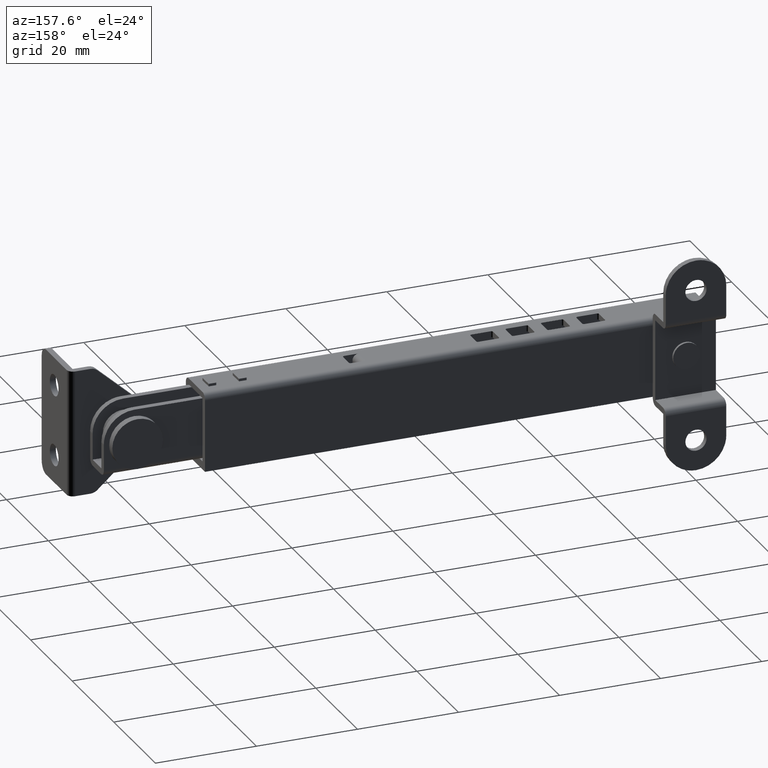
[diagram: clean part render]
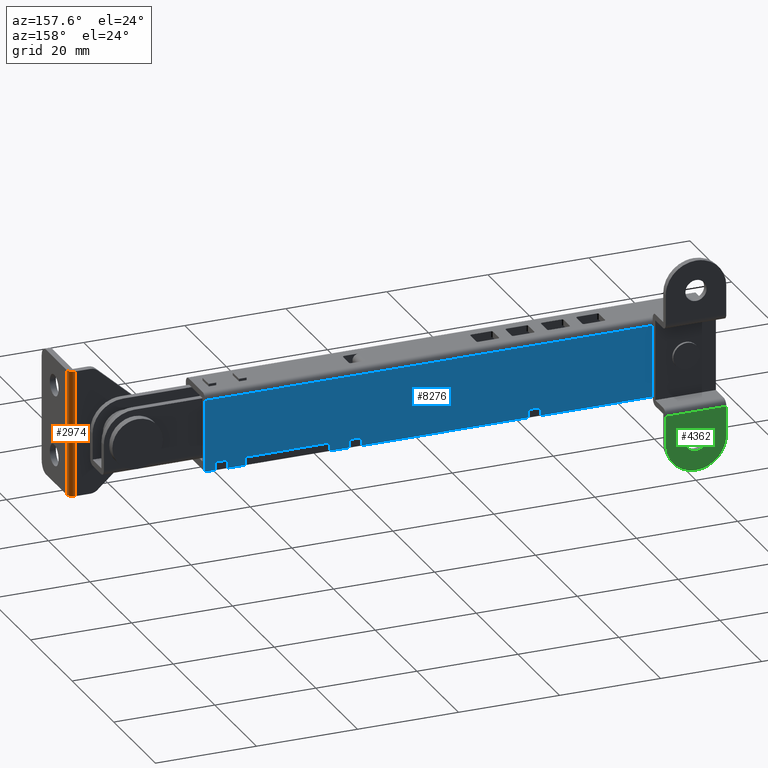
[diagram: same view with three faces highlighted in distinct colors, each labeled with its STEP entity id]
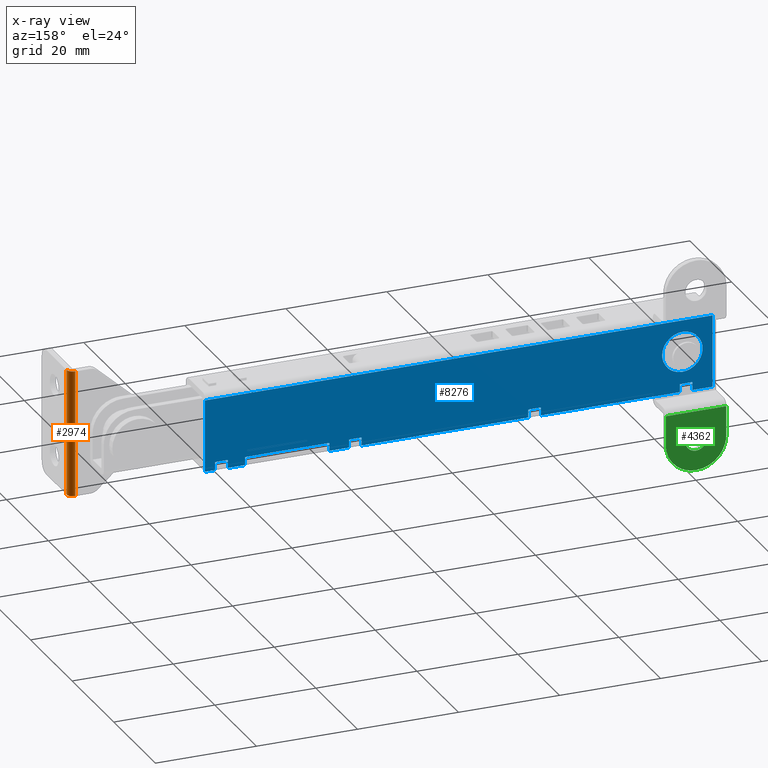
[diagram: x-ray of the same camera — body ghosted, the three highlighted faces saturated]
A machine part, auxiliary view with three faces highlighted in distinct colors.
The next image is the same camera in x-ray (body ghosted, the three faces saturated) — at least one of them is partly hidden behind the body in this view.
Their STEP definitions:

[orange] entity #2974 — the highlighted face is a freeform B-spline surface patch.
#2885=CARTESIAN_POINT('',(117.999999999938200,-16.000000000187899,12.500000000000300));
#2886=VERTEX_POINT('',#2885);
#2895=CARTESIAN_POINT('',(117.999999999938200,-16.000000000187899,-12.500000000000000));
#2896=VERTEX_POINT('',#2895);
#2902=CARTESIAN_POINT('',(117.999999999938200,-16.000000000187899,-12.500000000000000));
#2903=CARTESIAN_POINT('',(117.999999999938200,-16.000000000187899,12.500000000000300));
#2904=QUASI_UNIFORM_CURVE('',1,(#2902,#2903),.UNSPECIFIED.,.F.,.U.);
#2905=EDGE_CURVE('',#2896,#2886,#2904,.T.);
#2926=CARTESIAN_POINT('',(116.768587661968790,-14.800411210217231,-13.125000000000011));
#2927=CARTESIAN_POINT('',(116.768587661968790,-14.800411210217231,13.140625000000311));
#2928=CARTESIAN_POINT('',(118.077709106251130,-14.766130658752697,-13.125000000000009));
#2929=CARTESIAN_POINT('',(118.077709106251130,-14.766130658752697,13.140625000000307));
#2930=CARTESIAN_POINT('',(117.997761758044500,-16.073258247629699,-13.125000000000011));
#2931=CARTESIAN_POINT('',(117.997761758044500,-16.073258247629699,13.140625000000311));
#2939=(BOUNDED_SURFACE()B_SPLINE_SURFACE(1,2,((#2926,#2928,#2930),(#2927,#2929,#2931)),.UNSPECIFIED.,.F.,.F.,.U.)B_SPLINE_SURFACE_WITH_KNOTS((2,2),(3,3),(0.0,26.265625000000320),(0.0,2.112050548280775),.UNSPECIFIED.)GEOMETRIC_REPRESENTATION_ITEM()RATIONAL_B_SPLINE_SURFACE(((1.0,0.675590207615660,1.0),(1.0,0.675590207615660,1.0)))REPRESENTATION_ITEM('')SURFACE());
#2940=CARTESIAN_POINT('',(116.799999999938190,-14.800000000187920,12.500000000000300));
#2941=VERTEX_POINT('',#2940);
#2942=CARTESIAN_POINT('',(117.999999999938200,-16.000000000187899,12.500000000000300));
#2943=CARTESIAN_POINT('',(118.000154995630200,-15.842902735434761,12.500000000000311));
#2944=CARTESIAN_POINT('',(117.945240369215990,-15.568111018495561,12.500000000000290));
#2945=CARTESIAN_POINT('',(117.761513783139410,-15.261711034005360,12.500000000000320));
#2946=CARTESIAN_POINT('',(117.538289409100600,-15.038479472090691,12.500000000000250));
#2947=CARTESIAN_POINT('',(117.231880546618000,-14.854783521911740,12.500000000000410));
#2948=CARTESIAN_POINT('',(116.957103409524510,-14.799826109935781,12.500000000000160));
#2949=CARTESIAN_POINT('',(116.799999999938190,-14.800000000187920,12.500000000000300));
#2950=B_SPLINE_CURVE_WITH_KNOTS('',3,(#2942,#2943,#2944,#2945,#2946,#2947,#2948,#2949),.UNSPECIFIED.,.F.,.U.,(4,1,1,1,1,4),(0.000000336001188,0.471250975316817,0.824722723432618,1.060280505831677,1.413752253948257,1.885002893266316),.UNSPECIFIED.);
#2951=EDGE_CURVE('',#2886,#2941,#2950,.T.);
#2952=ORIENTED_EDGE('',*,*,#2951,.F.);
#2953=ORIENTED_EDGE('',*,*,#2905,.F.);
#2954=CARTESIAN_POINT('',(116.799999999938190,-14.800000000187920,-12.500000000000000));
#2955=VERTEX_POINT('',#2954);
#2956=CARTESIAN_POINT('',(117.999999999938200,-16.000000000187899,-12.500000000000000));
#2957=CARTESIAN_POINT('',(118.000154995630200,-15.842902735434770,-12.500000000000011));
#2958=CARTESIAN_POINT('',(117.945240369215990,-15.568111018495550,-12.500000000000000));
#2959=CARTESIAN_POINT('',(117.761513783139410,-15.261711034005360,-12.500000000000011));
#2960=CARTESIAN_POINT('',(117.538289409100600,-15.038479472090691,-12.499999999999959));
#2961=CARTESIAN_POINT('',(117.231880546618000,-14.854783521911740,-12.500000000000110));
#2962=CARTESIAN_POINT('',(116.957103409524610,-14.799826109935781,-12.499999999999870));
#2963=CARTESIAN_POINT('',(116.799999999938190,-14.800000000187920,-12.500000000000000));
#2964=B_SPLINE_CURVE_WITH_KNOTS('',3,(#2956,#2957,#2958,#2959,#2960,#2961,#2962,#2963),.UNSPECIFIED.,.F.,.U.,(4,1,1,1,1,4),(0.000000336001188,0.471250975316817,0.824722723432618,1.060280505831677,1.413752253948257,1.885002893266316),.UNSPECIFIED.);
#2965=EDGE_CURVE('',#2896,#2955,#2964,.T.);
#2966=ORIENTED_EDGE('',*,*,#2965,.T.);
#2967=CARTESIAN_POINT('',(116.799999999938190,-14.800000000187920,-12.500000000000000));
#2968=CARTESIAN_POINT('',(116.799999999938190,-14.800000000187920,12.500000000000300));
#2969=QUASI_UNIFORM_CURVE('',1,(#2967,#2968),.UNSPECIFIED.,.F.,.U.);
#2970=EDGE_CURVE('',#2955,#2941,#2969,.T.);
#2971=ORIENTED_EDGE('',*,*,#2970,.T.);
#2972=EDGE_LOOP('',(#2952,#2953,#2966,#2971));
#2973=FACE_OUTER_BOUND('',#2972,.T.);
#2974=ADVANCED_FACE('',(#2973),#2939,.T.);

[blue] entity #8276 — the highlighted face is a freeform B-spline surface patch.
#6666=CARTESIAN_POINT('',(2.803636808135322,-6.549999999997971,-2.853001444032441));
#6667=VERTEX_POINT('',#6666);
#6673=CARTESIAN_POINT('',(-1.136868E-013,-6.549999999997970,-3.999999999752543));
#6674=VERTEX_POINT('',#6673);
#6675=CARTESIAN_POINT('',(-1.136868E-013,-6.549999999997970,-3.999999999752543));
#6676=CARTESIAN_POINT('',(0.453115518183807,-6.549999999997975,-4.000333541699531));
#6677=CARTESIAN_POINT('',(1.100106939396764,-6.549999999997972,-3.888810040895856));
#6678=CARTESIAN_POINT('',(2.051287391097146,-6.549999999997969,-3.472386649104542));
#6679=CARTESIAN_POINT('',(2.526769850029818,-6.549999999997929,-3.125344002847344));
#6680=CARTESIAN_POINT('',(2.803636808135322,-6.549999999997971,-2.853001444032441));
#6681=B_SPLINE_CURVE_WITH_KNOTS('',3,(#6675,#6676,#6677,#6678,#6679,#6680),.UNSPECIFIED.,.F.,.U.,(4,1,1,4),(0.000000043175924,1.359184179807734,1.941690125895560,3.106705034853156),.UNSPECIFIED.);
#6682=EDGE_CURVE('',#6674,#6667,#6681,.T.);
#6684=CARTESIAN_POINT('',(-3.999999999875321,-6.549999999997970,-0.000001703496065));
#6685=VERTEX_POINT('',#6684);
#6686=CARTESIAN_POINT('',(-3.999999999875321,-6.549999999997970,-0.000001703496065));
#6687=CARTESIAN_POINT('',(-4.000010483380237,-6.549999999997959,-0.229067310976639));
#6688=CARTESIAN_POINT('',(-3.953521280009662,-6.549999999997986,-0.769029744471790));
#6689=CARTESIAN_POINT('',(-3.691281228358016,-6.549999999997956,-1.653543301743337));
#6690=CARTESIAN_POINT('',(-3.193424324865432,-6.549999999997969,-2.472597531045174));
#6691=CARTESIAN_POINT('',(-2.519065635633330,-6.549999999997967,-3.146873322060284));
#6692=CARTESIAN_POINT('',(-1.798169447499523,-6.549999999998007,-3.609625829967502));
#6693=CARTESIAN_POINT('',(-0.932617525786519,-6.549999999997965,-3.925279013536281));
#6694=CARTESIAN_POINT('',(-0.327251037855111,-6.549999999997969,-4.000083561234430));
#6695=CARTESIAN_POINT('',(-1.136868E-013,-6.549999999997970,-3.999999999752543));
#6696=B_SPLINE_CURVE_WITH_KNOTS('',3,(#6686,#6687,#6688,#6689,#6690,#6691,#6692,#6693,#6694,#6695),.UNSPECIFIED.,.F.,.U.,(4,1,1,1,1,1,1,4),(0.000000170140719,0.687206694942045,1.619894116931054,2.748937519952649,3.534287596504266,4.466977563691089,5.301490141978567,6.283223771128419),.UNSPECIFIED.);
#6697=EDGE_CURVE('',#6685,#6674,#6696,.T.);
#6699=CARTESIAN_POINT('',(-2.803636808135559,-6.549999999997970,2.853001444278505));
#6700=VERTEX_POINT('',#6699);
#6701=CARTESIAN_POINT('',(-2.803636808135559,-6.549999999997970,2.853001444278505));
#6702=CARTESIAN_POINT('',(-3.110683082841775,-6.549999999997987,2.551672406538114));
#6703=CARTESIAN_POINT('',(-3.486911729783811,-6.549999999997932,2.037877678478846));
#6704=CARTESIAN_POINT('',(-3.897584045025325,-6.549999999998015,1.058694737867666));
#6705=CARTESIAN_POINT('',(-4.000246734383261,-6.549999999997934,0.430191966249944));
#6706=CARTESIAN_POINT('',(-3.999999999875321,-6.549999999997970,-0.000001703496065));
#6707=B_SPLINE_CURVE_WITH_KNOTS('',3,(#6701,#6702,#6703,#6704,#6705,#6706),.UNSPECIFIED.,.F.,.U.,(4,1,1,4),(0.000000042817200,1.290472108983917,1.886049013989453,3.176521080209751),.UNSPECIFIED.);
#6708=EDGE_CURVE('',#6700,#6685,#6707,.T.);
#6742=CARTESIAN_POINT('',(-1.136868E-013,-6.549999999997970,3.999999999998598));
#6743=VERTEX_POINT('',#6742);
#6744=CARTESIAN_POINT('',(-1.136868E-013,-6.549999999997970,3.999999999998598));
#6745=CARTESIAN_POINT('',(-0.323618149225035,-6.549999999997979,4.000070243471589));
#6746=CARTESIAN_POINT('',(-0.970817980438166,-6.549999999997940,3.921058938376729));
#6747=CARTESIAN_POINT('',(-1.945657615557417,-6.549999999998048,3.549594462408471));
#6748=CARTESIAN_POINT('',(-2.526759966529120,-6.549999999997898,3.125325329273787));
#6749=CARTESIAN_POINT('',(-2.803636808135559,-6.549999999997970,2.853001444278505));
#6750=B_SPLINE_CURVE_WITH_KNOTS('',3,(#6744,#6745,#6746,#6747,#6748,#6749),.UNSPECIFIED.,.F.,.U.,(4,1,1,4),(0.000000043175572,0.970845521849461,1.941690125895452,3.106705034853161),.UNSPECIFIED.);
#6751=EDGE_CURVE('',#6743,#6700,#6750,.T.);
#6753=CARTESIAN_POINT('',(3.999999999875094,-6.549999999997971,0.000001703742170));
#6754=VERTEX_POINT('',#6753);
#6755=CARTESIAN_POINT('',(3.999999999875094,-6.549999999997971,0.000001703742170));
#6756=CARTESIAN_POINT('',(4.000520263814729,-6.549999999998001,0.507325280542887));
#6757=CARTESIAN_POINT('',(3.842177018184501,-6.549999999997900,1.325049770656315));
#6758=CARTESIAN_POINT('',(3.331504878198762,-6.549999999998073,2.266252528294428));
#6759=CARTESIAN_POINT('',(2.734772589380527,-6.549999999997810,2.966738769782755));
#6760=CARTESIAN_POINT('',(2.058446762006394,-6.549999999998114,3.468394326254157));
#6761=CARTESIAN_POINT('',(1.112456267428418,-6.549999999997881,3.887653051119977));
#6762=CARTESIAN_POINT('',(0.441836620000334,-6.549999999998015,4.000268283823984));
#6763=CARTESIAN_POINT('',(-1.136868E-013,-6.549999999997970,3.999999999998598));
#6764=B_SPLINE_CURVE_WITH_KNOTS('',3,(#6755,#6756,#6757,#6758,#6759,#6760,#6761,#6762,#6763),.UNSPECIFIED.,.F.,.U.,(4,1,1,1,1,1,4),(0.000000170141051,1.521717940200698,2.454411881155679,3.190647674613075,4.270623167871297,4.957858176003500,6.283223771128391),.UNSPECIFIED.);
#6765=EDGE_CURVE('',#6754,#6743,#6764,.T.);
#6767=CARTESIAN_POINT('',(2.803636808135322,-6.549999999997971,-2.853001444032441));
#6768=CARTESIAN_POINT('',(3.169820937898688,-6.549999999997973,-2.493785410297458));
#6769=CARTESIAN_POINT('',(3.617575417287064,-6.549999999997978,-1.840587993105613));
#6770=CARTESIAN_POINT('',(3.942142724704525,-6.549999999997945,-0.827164930098555));
#6771=CARTESIAN_POINT('',(4.000045966713431,-6.549999999998023,-0.281255295582724));
#6772=CARTESIAN_POINT('',(3.999999999875094,-6.549999999997971,0.000001703742170));
#6773=B_SPLINE_CURVE_WITH_KNOTS('',3,(#6767,#6768,#6769,#6770,#6771,#6772),.UNSPECIFIED.,.F.,.U.,(4,1,1,4),(0.000000042816929,1.538652569071357,2.332757361567636,3.176521080209799),.UNSPECIFIED.);
#6774=EDGE_CURVE('',#6667,#6754,#6773,.T.);
#7448=CARTESIAN_POINT('',(-6.0,-6.549999999997900,6.300000000026190));
#7449=VERTEX_POINT('',#7448);
#7468=CARTESIAN_POINT('',(94.500000000000000,-6.549999999997900,6.300000000026190));
#7469=VERTEX_POINT('',#7468);
#7481=CARTESIAN_POINT('',(94.500000000000000,-6.549999999997900,6.300000000026190));
#7482=CARTESIAN_POINT('',(-6.0,-6.549999999997900,6.300000000026190));
#7483=QUASI_UNIFORM_CURVE('',1,(#7481,#7482),.UNSPECIFIED.,.F.,.U.);
#7484=EDGE_CURVE('',#7469,#7449,#7483,.T.);
#8101=CARTESIAN_POINT('',(-11.019974805211501,-6.549999999997970,-8.714284972404489));
#8102=CARTESIAN_POINT('',(-11.019974805211501,-6.549999999997970,7.014285355872893));
#8103=CARTESIAN_POINT('',(99.519977500831573,-6.549999999997970,-8.714284972404489));
#8104=CARTESIAN_POINT('',(99.519977500831573,-6.549999999997970,7.014285355872893));
#8105=B_SPLINE_SURFACE_WITH_KNOTS('',1,1,((#8101,#8103),(#8102,#8104)),.UNSPECIFIED.,.F.,.F.,.U.,(2,2),(2,2),(0.0,15.728570328277380),(0.0,110.539952306043110),.UNSPECIFIED.);
#8106=CARTESIAN_POINT('',(0.499999999997158,-6.549999999997951,-8.000000000111660));
#8107=VERTEX_POINT('',#8106);
#8108=CARTESIAN_POINT('',(0.499999999996987,-6.549999999997951,-6.400000000036700));
#8109=VERTEX_POINT('',#8108);
#8110=CARTESIAN_POINT('',(0.499999999997158,-6.549999999997951,-8.000000000111660));
#8111=CARTESIAN_POINT('',(0.499999999996987,-6.549999999997951,-6.400000000036700));
#8112=QUASI_UNIFORM_CURVE('',1,(#8110,#8111),.UNSPECIFIED.,.F.,.U.);
#8113=EDGE_CURVE('',#8107,#8109,#8112,.T.);
#8114=ORIENTED_EDGE('',*,*,#8113,.T.);
#8115=CARTESIAN_POINT('',(-2.000000000003015,-6.549999999997951,-6.400000000036700));
#8116=VERTEX_POINT('',#8115);
#8117=CARTESIAN_POINT('',(0.499999999996987,-6.549999999997951,-6.400000000036700));
#8118=CARTESIAN_POINT('',(-2.000000000003015,-6.549999999997951,-6.400000000036700));
#8119=QUASI_UNIFORM_CURVE('',1,(#8117,#8118),.UNSPECIFIED.,.F.,.U.);
#8120=EDGE_CURVE('',#8109,#8116,#8119,.T.);
#8121=ORIENTED_EDGE('',*,*,#8120,.T.);
#8122=CARTESIAN_POINT('',(-2.000000000002845,-6.549999999997951,-8.000000000113680));
#8123=VERTEX_POINT('',#8122);
#8124=CARTESIAN_POINT('',(-2.000000000003015,-6.549999999997951,-6.400000000036700));
#8125=CARTESIAN_POINT('',(-2.000000000002845,-6.549999999997951,-8.000000000113680));
#8126=QUASI_UNIFORM_CURVE('',1,(#8124,#8125),.UNSPECIFIED.,.F.,.U.);
#8127=EDGE_CURVE('',#8116,#8123,#8126,.T.);
#8128=ORIENTED_EDGE('',*,*,#8127,.T.);
#8129=CARTESIAN_POINT('',(-6.0,-6.549999999997970,-7.999999999977289));
#8130=VERTEX_POINT('',#8129);
#8131=CARTESIAN_POINT('',(-2.000000000002845,-6.549999999997951,-8.000000000113680));
#8132=CARTESIAN_POINT('',(-6.0,-6.549999999997970,-7.999999999977289));
#8133=QUASI_UNIFORM_CURVE('',1,(#8131,#8132),.UNSPECIFIED.,.F.,.U.);
#8134=EDGE_CURVE('',#8123,#8130,#8133,.T.);
#8135=ORIENTED_EDGE('',*,*,#8134,.T.);
#8136=CARTESIAN_POINT('',(-6.0,-6.549999999997900,6.300000000026190));
#8137=CARTESIAN_POINT('',(-6.0,-6.549999999997970,-7.999999999977289));
#8138=QUASI_UNIFORM_CURVE('',1,(#8136,#8137),.UNSPECIFIED.,.F.,.U.);
#8139=EDGE_CURVE('',#7449,#8130,#8138,.T.);
#8140=ORIENTED_EDGE('',*,*,#8139,.F.);
#8141=ORIENTED_EDGE('',*,*,#7484,.F.);
#8142=CARTESIAN_POINT('',(94.500000000000000,-6.549999999997970,-7.999999999977289));
#8143=VERTEX_POINT('',#8142);
#8144=CARTESIAN_POINT('',(94.500000000000000,-6.549999999997900,6.300000000026190));
#8145=CARTESIAN_POINT('',(94.500000000000000,-6.549999999997970,-7.999999999977289));
#8146=QUASI_UNIFORM_CURVE('',1,(#8144,#8145),.UNSPECIFIED.,.F.,.U.);
#8147=EDGE_CURVE('',#7469,#8143,#8146,.T.);
#8148=ORIENTED_EDGE('',*,*,#8147,.T.);
#8149=CARTESIAN_POINT('',(92.499999999997300,-6.549999999997951,-8.000000000037510));
#8150=VERTEX_POINT('',#8149);
#8151=CARTESIAN_POINT('',(94.500000000000000,-6.549999999997970,-7.999999999977289));
#8152=CARTESIAN_POINT('',(92.499999999997300,-6.549999999997951,-8.000000000037510));
#8153=QUASI_UNIFORM_CURVE('',1,(#8151,#8152),.UNSPECIFIED.,.F.,.U.);
#8154=EDGE_CURVE('',#8143,#8150,#8153,.T.);
#8155=ORIENTED_EDGE('',*,*,#8154,.T.);
#8156=CARTESIAN_POINT('',(92.499999999996902,-6.549999999997951,-6.400000000023801));
#8157=VERTEX_POINT('',#8156);
#8158=CARTESIAN_POINT('',(92.499999999996902,-6.549999999997951,-6.400000000023801));
#8159=CARTESIAN_POINT('',(92.499999999997300,-6.549999999997951,-8.000000000037510));
#8160=QUASI_UNIFORM_CURVE('',1,(#8158,#8159),.UNSPECIFIED.,.F.,.U.);
#8161=EDGE_CURVE('',#8157,#8150,#8160,.T.);
#8162=ORIENTED_EDGE('',*,*,#8161,.F.);
#8163=CARTESIAN_POINT('',(89.999999999996902,-6.549999999997951,-6.400000000023801));
#8164=VERTEX_POINT('',#8163);
#8165=CARTESIAN_POINT('',(89.999999999996902,-6.549999999997951,-6.400000000023801));
#8166=CARTESIAN_POINT('',(92.499999999996902,-6.549999999997951,-6.400000000023801));
#8167=QUASI_UNIFORM_CURVE('',1,(#8165,#8166),.UNSPECIFIED.,.F.,.U.);
#8168=EDGE_CURVE('',#8164,#8157,#8167,.T.);
#8169=ORIENTED_EDGE('',*,*,#8168,.F.);
#8170=CARTESIAN_POINT('',(89.999999999997200,-6.549999999997951,-8.000000000039520));
#8171=VERTEX_POINT('',#8170);
#8172=CARTESIAN_POINT('',(89.999999999997200,-6.549999999997951,-8.000000000039520));
#8173=CARTESIAN_POINT('',(89.999999999996902,-6.549999999997951,-6.400000000023801));
#8174=QUASI_UNIFORM_CURVE('',1,(#8172,#8173),.UNSPECIFIED.,.F.,.U.);
#8175=EDGE_CURVE('',#8171,#8164,#8174,.T.);
#8176=ORIENTED_EDGE('',*,*,#8175,.F.);
#8177=CARTESIAN_POINT('',(86.599999999976689,-6.549999999997951,-8.000000000042270));
#8178=VERTEX_POINT('',#8177);
#8179=CARTESIAN_POINT('',(89.999999999997200,-6.549999999997951,-8.000000000039520));
#8180=CARTESIAN_POINT('',(86.599999999976689,-6.549999999997951,-8.000000000042270));
#8181=QUASI_UNIFORM_CURVE('',1,(#8179,#8180),.UNSPECIFIED.,.F.,.U.);
#8182=EDGE_CURVE('',#8171,#8178,#8181,.T.);
#8183=ORIENTED_EDGE('',*,*,#8182,.T.);
#8184=CARTESIAN_POINT('',(86.599999999973605,-6.549999999997951,-6.400000000036700));
#8185=VERTEX_POINT('',#8184);
#8186=CARTESIAN_POINT('',(86.599999999976689,-6.549999999997951,-8.000000000042270));
#8187=CARTESIAN_POINT('',(86.599999999973605,-6.549999999997951,-6.400000000036700));
#8188=QUASI_UNIFORM_CURVE('',1,(#8186,#8187),.UNSPECIFIED.,.F.,.U.);
#8189=EDGE_CURVE('',#8178,#8185,#8188,.T.);
#8190=ORIENTED_EDGE('',*,*,#8189,.T.);
#8191=CARTESIAN_POINT('',(69.900000000020214,-6.549999999997951,-6.400000000036700));
#8192=VERTEX_POINT('',#8191);
#8193=CARTESIAN_POINT('',(86.599999999973605,-6.549999999997951,-6.400000000036700));
#8194=CARTESIAN_POINT('',(69.900000000020214,-6.549999999997951,-6.400000000036700));
#8195=QUASI_UNIFORM_CURVE('',1,(#8193,#8194),.UNSPECIFIED.,.F.,.U.);
#8196=EDGE_CURVE('',#8185,#8192,#8195,.T.);
#8197=ORIENTED_EDGE('',*,*,#8196,.T.);
#8198=CARTESIAN_POINT('',(69.900000000017812,-6.549999999997951,-8.000000000055730));
#8199=VERTEX_POINT('',#8198);
#8200=CARTESIAN_POINT('',(69.900000000020214,-6.549999999997951,-6.400000000036700));
#8201=CARTESIAN_POINT('',(69.900000000017812,-6.549999999997951,-8.000000000055730));
#8202=QUASI_UNIFORM_CURVE('',1,(#8200,#8201),.UNSPECIFIED.,.F.,.U.);
#8203=EDGE_CURVE('',#8192,#8199,#8202,.T.);
#8204=ORIENTED_EDGE('',*,*,#8203,.T.);
#8205=CARTESIAN_POINT('',(65.999999999997200,-6.549999999997951,-8.000000000058870));
#8206=VERTEX_POINT('',#8205);
#8207=CARTESIAN_POINT('',(69.900000000017812,-6.549999999997951,-8.000000000055730));
#8208=CARTESIAN_POINT('',(65.999999999997200,-6.549999999997951,-8.000000000058870));
#8209=QUASI_UNIFORM_CURVE('',1,(#8207,#8208),.UNSPECIFIED.,.F.,.U.);
#8210=EDGE_CURVE('',#8199,#8206,#8209,.T.);
#8211=ORIENTED_EDGE('',*,*,#8210,.T.);
#8212=CARTESIAN_POINT('',(65.999999999996987,-6.549999999997951,-6.400000000036700));
#8213=VERTEX_POINT('',#8212);
#8214=CARTESIAN_POINT('',(65.999999999997200,-6.549999999997951,-8.000000000058870));
#8215=CARTESIAN_POINT('',(65.999999999996987,-6.549999999997951,-6.400000000036700));
#8216=QUASI_UNIFORM_CURVE('',1,(#8214,#8215),.UNSPECIFIED.,.F.,.U.);
#8217=EDGE_CURVE('',#8206,#8213,#8216,.T.);
#8218=ORIENTED_EDGE('',*,*,#8217,.T.);
#8219=CARTESIAN_POINT('',(63.500000000055209,-6.549999999997951,-6.400000000036700));
#8220=VERTEX_POINT('',#8219);
#8221=CARTESIAN_POINT('',(65.999999999996987,-6.549999999997951,-6.400000000036700));
#8222=CARTESIAN_POINT('',(63.500000000055209,-6.549999999997951,-6.400000000036700));
#8223=QUASI_UNIFORM_CURVE('',1,(#8221,#8222),.UNSPECIFIED.,.F.,.U.);
#8224=EDGE_CURVE('',#8213,#8220,#8223,.T.);
#8225=ORIENTED_EDGE('',*,*,#8224,.T.);
#8226=CARTESIAN_POINT('',(63.500000000048409,-6.549999999997951,-8.000000000060881));
#8227=VERTEX_POINT('',#8226);
#8228=CARTESIAN_POINT('',(63.500000000055209,-6.549999999997951,-6.400000000036700));
#8229=CARTESIAN_POINT('',(63.500000000048409,-6.549999999997951,-8.000000000060881));
#8230=QUASI_UNIFORM_CURVE('',1,(#8228,#8229),.UNSPECIFIED.,.F.,.U.);
#8231=EDGE_CURVE('',#8220,#8227,#8230,.T.);
#8232=ORIENTED_EDGE('',*,*,#8231,.T.);
#8233=CARTESIAN_POINT('',(30.499999999997101,-6.549999999997951,-8.000000000087480));
#8234=VERTEX_POINT('',#8233);
#8235=CARTESIAN_POINT('',(63.500000000048409,-6.549999999997951,-8.000000000060881));
#8236=CARTESIAN_POINT('',(30.499999999997101,-6.549999999997951,-8.000000000087480));
#8237=QUASI_UNIFORM_CURVE('',1,(#8235,#8236),.UNSPECIFIED.,.F.,.U.);
#8238=EDGE_CURVE('',#8227,#8234,#8237,.T.);
#8239=ORIENTED_EDGE('',*,*,#8238,.T.);
#8240=CARTESIAN_POINT('',(30.499999999996952,-6.549999999997951,-6.400000000023710));
#8241=VERTEX_POINT('',#8240);
#8242=CARTESIAN_POINT('',(30.499999999996952,-6.549999999997951,-6.400000000023710));
#8243=CARTESIAN_POINT('',(30.499999999997101,-6.549999999997951,-8.000000000087480));
#8244=QUASI_UNIFORM_CURVE('',1,(#8242,#8243),.UNSPECIFIED.,.F.,.U.);
#8245=EDGE_CURVE('',#8241,#8234,#8244,.T.);
#8246=ORIENTED_EDGE('',*,*,#8245,.F.);
#8247=CARTESIAN_POINT('',(28.000000000055199,-6.549999999997951,-6.400000000023801));
#8248=VERTEX_POINT('',#8247);
#8249=CARTESIAN_POINT('',(28.000000000055199,-6.549999999997951,-6.400000000023801));
#8250=CARTESIAN_POINT('',(30.499999999996952,-6.549999999997951,-6.400000000023710));
#8251=QUASI_UNIFORM_CURVE('',1,(#8249,#8250),.UNSPECIFIED.,.F.,.U.);
#8252=EDGE_CURVE('',#8248,#8241,#8251,.T.);
#8253=ORIENTED_EDGE('',*,*,#8252,.F.);
#8254=CARTESIAN_POINT('',(28.000000000048601,-6.549999999997951,-8.000000000089500));
#8255=VERTEX_POINT('',#8254);
#8256=CARTESIAN_POINT('',(28.000000000048601,-6.549999999997951,-8.000000000089500));
#8257=CARTESIAN_POINT('',(28.000000000055199,-6.549999999997951,-6.400000000023801));
#8258=QUASI_UNIFORM_CURVE('',1,(#8256,#8257),.UNSPECIFIED.,.F.,.U.);
#8259=EDGE_CURVE('',#8255,#8248,#8258,.T.);
#8260=ORIENTED_EDGE('',*,*,#8259,.F.);
#8261=CARTESIAN_POINT('',(28.000000000048601,-6.549999999997951,-8.000000000089500));
#8262=CARTESIAN_POINT('',(0.499999999997158,-6.549999999997951,-8.000000000111660));
#8263=QUASI_UNIFORM_CURVE('',1,(#8261,#8262),.UNSPECIFIED.,.F.,.U.);
#8264=EDGE_CURVE('',#8255,#8107,#8263,.T.);
#8265=ORIENTED_EDGE('',*,*,#8264,.T.);
#8266=EDGE_LOOP('',(#8114,#8121,#8128,#8135,#8140,#8141,#8148,#8155,#8162,#8169,#8176,#8183,#8190,#8197,#8204,#8211,#8218,#8225,#8232,#8239,#8246,#8253,#8260,#8265));
#8267=FACE_OUTER_BOUND('',#8266,.T.);
#8268=ORIENTED_EDGE('',*,*,#6697,.T.);
#8269=ORIENTED_EDGE('',*,*,#6682,.T.);
#8270=ORIENTED_EDGE('',*,*,#6774,.T.);
#8271=ORIENTED_EDGE('',*,*,#6765,.T.);
#8272=ORIENTED_EDGE('',*,*,#6751,.T.);
#8273=ORIENTED_EDGE('',*,*,#6708,.T.);
#8274=EDGE_LOOP('',(#8268,#8269,#8270,#8271,#8272,#8273));
#8275=FACE_BOUND('',#8274,.T.);
#8276=ADVANCED_FACE('',(#8267,#8275),#8105,.T.);

[green] entity #4362 — the highlighted face is a freeform B-spline surface patch.
#3070=CARTESIAN_POINT('',(-1.497825674108719,-6.591949E-017,-16.471908876120381));
#3071=VERTEX_POINT('',#3070);
#3077=CARTESIAN_POINT('',(-2.100000000000113,0.0,-15.0));
#3078=VERTEX_POINT('',#3077);
#3079=CARTESIAN_POINT('',(-2.100000000000113,0.0,-15.0));
#3080=CARTESIAN_POINT('',(-2.100204577327697,-1.141459E-017,-15.254875169439540));
#3081=CARTESIAN_POINT('',(-1.999793890708611,-3.575625E-017,-15.798397156622860));
#3082=CARTESIAN_POINT('',(-1.700527930317564,-5.670235E-017,-16.266100459060951));
#3083=CARTESIAN_POINT('',(-1.497825674108719,-6.591949E-017,-16.471908876120381));
#3084=B_SPLINE_CURVE_WITH_KNOTS('',3,(#3079,#3080,#3081,#3082,#3083),.UNSPECIFIED.,.F.,.U.,(4,1,4),(0.000000066936473,0.764572412105007,1.631049753485329),.UNSPECIFIED.);
#3085=EDGE_CURVE('',#3078,#3071,#3084,.T.);
#3087=CARTESIAN_POINT('',(-0.000002391201255,0.0,-12.900000000001359));
#3088=VERTEX_POINT('',#3087);
#3089=CARTESIAN_POINT('',(-0.000002391201255,0.0,-12.900000000001359));
#3090=CARTESIAN_POINT('',(-0.206174984500621,0.0,-12.899917420455459));
#3091=CARTESIAN_POINT('',(-0.618477050400096,0.0,-12.961184312694609));
#3092=CARTESIAN_POINT('',(-1.136571399381170,0.0,-13.206203758769920));
#3093=CARTESIAN_POINT('',(-1.506864895890723,0.0,-13.517886522282810));
#3094=CARTESIAN_POINT('',(-1.776248385897824,0.0,-13.854456178778319));
#3095=CARTESIAN_POINT('',(-2.023099996530270,0.0,-14.330097074039070));
#3096=CARTESIAN_POINT('',(-2.100230020872787,0.0,-14.742254719054641));
#3097=CARTESIAN_POINT('',(-2.100000000000113,0.0,-15.0));
#3098=B_SPLINE_CURVE_WITH_KNOTS('',3,(#3089,#3090,#3091,#3092,#3093,#3094,#3095,#3096,#3097),.UNSPECIFIED.,.F.,.U.,(4,1,1,1,1,1,4),(0.000000259748040,0.618514543024358,1.237038969666300,1.700883578254061,2.061715002249668,2.525610564575166,3.298753715371204),.UNSPECIFIED.);
#3099=EDGE_CURVE('',#3088,#3078,#3098,.T.);
#3101=CARTESIAN_POINT('',(1.497825674108491,1.439820E-016,-13.528091123879619));
#3102=VERTEX_POINT('',#3101);
#3103=CARTESIAN_POINT('',(1.497825674108491,1.439820E-016,-13.528091123879619));
#3104=CARTESIAN_POINT('',(1.291086959433621,1.241088E-016,-13.317120511626200));
#3105=CARTESIAN_POINT('',(0.816287659463827,7.846772E-017,-13.004893006853941));
#3106=CARTESIAN_POINT('',(0.260612086013439,2.505216E-017,-12.899757884291340));
#3107=CARTESIAN_POINT('',(-0.000002391201255,0.0,-12.900000000001359));
#3108=B_SPLINE_CURVE_WITH_KNOTS('',3,(#3103,#3104,#3105,#3106,#3107),.UNSPECIFIED.,.F.,.U.,(4,1,4),(0.000000074819929,0.885950498485422,1.667707261422985),.UNSPECIFIED.);
#3109=EDGE_CURVE('',#3102,#3088,#3108,.T.);
#3194=CARTESIAN_POINT('',(2.099999999999886,0.0,-15.0));
#3195=VERTEX_POINT('',#3194);
#3196=CARTESIAN_POINT('',(2.099999999999886,0.0,-15.0));
#3197=CARTESIAN_POINT('',(2.100126424369501,2.160726E-017,-14.779111921583249));
#3198=CARTESIAN_POINT('',(2.040460383336655,5.816127E-017,-14.405425219417070));
#3199=CARTESIAN_POINT('',(1.815056791299952,1.069069E-016,-13.907104890609190));
#3200=CARTESIAN_POINT('',(1.616938930782722,1.321306E-016,-13.649247187173200));
#3201=CARTESIAN_POINT('',(1.497825674108491,1.439820E-016,-13.528091123879619));
#3202=B_SPLINE_CURVE_WITH_KNOTS('',3,(#3196,#3197,#3198,#3199,#3200,#3201),.UNSPECIFIED.,.F.,.U.,(4,1,1,4),(0.000000066936315,0.662626242296349,1.121339980872951,1.631049753485332),.UNSPECIFIED.);
#3203=EDGE_CURVE('',#3195,#3102,#3202,.T.);
#3205=CARTESIAN_POINT('',(0.000002391201026,0.0,-17.099999999998641));
#3206=VERTEX_POINT('',#3205);
#3207=CARTESIAN_POINT('',(0.000002391201026,0.0,-17.099999999998641));
#3208=CARTESIAN_POINT('',(0.206174402644168,0.0,-17.100069537217749));
#3209=CARTESIAN_POINT('',(0.618468892925612,0.0,-17.038818942808721));
#3210=CARTESIAN_POINT('',(1.215131393399203,0.0,-16.756722814294100));
#3211=CARTESIAN_POINT('',(1.657087882638316,0.0,-16.335969167986391));
#3212=CARTESIAN_POINT('',(2.005164933614225,0.0,-15.738460020406579));
#3213=CARTESIAN_POINT('',(2.100419488713155,0.0,-15.292164189400291));
#3214=CARTESIAN_POINT('',(2.099999999999886,0.0,-15.0));
#3215=B_SPLINE_CURVE_WITH_KNOTS('',3,(#3207,#3208,#3209,#3210,#3211,#3212,#3213,#3214),.UNSPECIFIED.,.F.,.U.,(4,1,1,1,1,4),(0.000000259747944,0.618514543024224,1.237038969666159,1.958600549948206,2.422520136108461,3.298753715371205),.UNSPECIFIED.);
#3216=EDGE_CURVE('',#3206,#3195,#3215,.T.);
#3218=CARTESIAN_POINT('',(-1.497825674108719,-6.591949E-017,-16.471908876120381));
#3219=CARTESIAN_POINT('',(-1.339621436393211,-5.895692E-017,-16.633101915907261));
#3220=CARTESIAN_POINT('',(-1.055690421653765,-4.646111E-017,-16.841045358036219));
#3221=CARTESIAN_POINT('',(-0.538457183815158,-2.369764E-017,-17.050426184062619));
#3222=CARTESIAN_POINT('',(-0.208470781588482,-9.174920E-018,-17.100100828507511));
#3223=CARTESIAN_POINT('',(0.000002391201026,0.0,-17.099999999998641));
#3224=B_SPLINE_CURVE_WITH_KNOTS('',3,(#3218,#3219,#3220,#3221,#3222,#3223),.UNSPECIFIED.,.F.,.U.,(4,1,1,4),(0.000000074819455,0.677519217125508,1.042316645377314,1.667707261422993),.UNSPECIFIED.);
#3225=EDGE_CURVE('',#3071,#3206,#3224,.T.);
#4192=CARTESIAN_POINT('',(-6.0,3.865352E-012,-15.000000000014250));
#4193=VERTEX_POINT('',#4192);
#4199=CARTESIAN_POINT('',(-0.000001397747054,3.865352E-012,-21.000000000014090));
#4200=VERTEX_POINT('',#4199);
#4201=CARTESIAN_POINT('',(-0.000001397747054,3.865352E-012,-21.000000000014090));
#4202=CARTESIAN_POINT('',(-0.392703008320256,3.865352E-012,-21.000053793889862));
#4203=CARTESIAN_POINT('',(-1.153534638239941,3.865352E-012,-20.925030078148819));
#4204=CARTESIAN_POINT('',(-2.216895311774813,3.865352E-012,-20.609612214896430));
#4205=CARTESIAN_POINT('',(-3.119052016019250,3.865352E-012,-20.155451140569252));
#4206=CARTESIAN_POINT('',(-4.036611130519623,3.865352E-012,-19.492353449276951));
#4207=CARTESIAN_POINT('',(-4.945515802544346,3.865352E-012,-18.514051667148252));
#4208=CARTESIAN_POINT('',(-5.774599077862755,3.865352E-012,-16.963194138209939));
#4209=CARTESIAN_POINT('',(-6.000521511718752,3.865352E-012,-15.711828998553910));
#4210=CARTESIAN_POINT('',(-6.0,3.865352E-012,-15.000000000014250));
#4211=B_SPLINE_CURVE_WITH_KNOTS('',3,(#4201,#4202,#4203,#4204,#4205,#4206,#4207,#4208,#4209,#4210),.UNSPECIFIED.,.F.,.U.,(4,1,1,1,1,1,1,4),(0.000000162671066,1.178098539235682,2.282576334044594,3.313421523675276,4.197041116659899,5.669604585075723,7.289524377584903,9.424836309462858),.UNSPECIFIED.);
#4212=EDGE_CURVE('',#4200,#4193,#4211,.T.);
#4214=CARTESIAN_POINT('',(5.999999999999770,3.865352E-012,-15.000000000014250));
#4215=VERTEX_POINT('',#4214);
#4216=CARTESIAN_POINT('',(5.999999999999770,3.865352E-012,-15.000000000014250));
#4217=CARTESIAN_POINT('',(6.000095242532926,3.865352E-012,-15.466337040629170));
#4218=CARTESIAN_POINT('',(5.899343437613023,3.865352E-012,-16.325321399189420));
#4219=CARTESIAN_POINT('',(5.538290667127798,3.865352E-012,-17.374744657463449));
#4220=CARTESIAN_POINT('',(5.051439690980384,3.865352E-012,-18.285588757632301));
#4221=CARTESIAN_POINT('',(4.379505044362869,3.865352E-012,-19.168856014758848));
#4222=CARTESIAN_POINT('',(3.326161632962805,3.865352E-012,-20.066313688007352));
#4223=CARTESIAN_POINT('',(1.840570894205619,3.865352E-012,-20.802794751253010));
#4224=CARTESIAN_POINT('',(0.662719552207008,3.865352E-012,-21.000408739586241));
#4225=CARTESIAN_POINT('',(-0.000001397747054,3.865352E-012,-21.000000000014090));
#4226=B_SPLINE_CURVE_WITH_KNOTS('',3,(#4216,#4217,#4218,#4219,#4220,#4221,#4222,#4223,#4224,#4225),.UNSPECIFIED.,.F.,.U.,(4,1,1,1,1,1,1,4),(0.000000162185051,1.398992590859979,2.577107162004173,3.313422076678458,4.491539496794089,5.890513598117064,7.436789429492808,9.424837885059256),.UNSPECIFIED.);
#4227=EDGE_CURVE('',#4215,#4200,#4226,.T.);
#4242=CARTESIAN_POINT('',(-5.999999999999890,2.682077E-012,-9.199999999915461));
#4243=VERTEX_POINT('',#4242);
#4244=CARTESIAN_POINT('',(-5.999999999999890,2.682077E-012,-9.199999999915461));
#4245=CARTESIAN_POINT('',(-6.0,3.865352E-012,-15.000000000014250));
#4246=QUASI_UNIFORM_CURVE('',1,(#4244,#4245),.UNSPECIFIED.,.F.,.U.);
#4247=EDGE_CURVE('',#4243,#4193,#4246,.T.);
#4284=CARTESIAN_POINT('',(5.999999999999780,2.682077E-012,-9.199999999915461));
#4285=VERTEX_POINT('',#4284);
#4286=CARTESIAN_POINT('',(5.999999999999780,2.682077E-012,-9.199999999915461));
#4287=CARTESIAN_POINT('',(5.999999999999770,3.865352E-012,-15.000000000014250));
#4288=QUASI_UNIFORM_CURVE('',1,(#4286,#4287),.UNSPECIFIED.,.F.,.U.);
#4289=EDGE_CURVE('',#4285,#4215,#4288,.T.);
#4334=CARTESIAN_POINT('',(5.999999999999780,2.682077E-012,-9.199999999915461));
#4335=CARTESIAN_POINT('',(-5.999999999999890,2.682077E-012,-9.199999999915461));
#4336=QUASI_UNIFORM_CURVE('',1,(#4334,#4335),.UNSPECIFIED.,.F.,.U.);
#4337=EDGE_CURVE('',#4285,#4243,#4336,.T.);
#4342=CARTESIAN_POINT('',(-6.599399976741661,3.865352E-012,-21.589409977148328));
#4343=CARTESIAN_POINT('',(-6.599399976741661,3.865352E-012,-8.610589706280559));
#4344=CARTESIAN_POINT('',(6.599400298606522,3.865352E-012,-21.589409977148328));
#4345=CARTESIAN_POINT('',(6.599400298606522,3.865352E-012,-8.610589706280559));
#4346=B_SPLINE_SURFACE_WITH_KNOTS('',1,1,((#4342,#4344),(#4343,#4345)),.UNSPECIFIED.,.F.,.F.,.U.,(2,2),(2,2),(0.0,12.978820270867770),(0.0,13.198800275348180),.UNSPECIFIED.);
#4347=ORIENTED_EDGE('',*,*,#4227,.T.);
#4348=ORIENTED_EDGE('',*,*,#4212,.T.);
#4349=ORIENTED_EDGE('',*,*,#4247,.F.);
#4350=ORIENTED_EDGE('',*,*,#4337,.F.);
#4351=ORIENTED_EDGE('',*,*,#4289,.T.);
#4352=EDGE_LOOP('',(#4347,#4348,#4349,#4350,#4351));
#4353=FACE_OUTER_BOUND('',#4352,.T.);
#4354=ORIENTED_EDGE('',*,*,#3099,.T.);
#4355=ORIENTED_EDGE('',*,*,#3085,.T.);
#4356=ORIENTED_EDGE('',*,*,#3225,.T.);
#4357=ORIENTED_EDGE('',*,*,#3216,.T.);
#4358=ORIENTED_EDGE('',*,*,#3203,.T.);
#4359=ORIENTED_EDGE('',*,*,#3109,.T.);
#4360=EDGE_LOOP('',(#4354,#4355,#4356,#4357,#4358,#4359));
#4361=FACE_BOUND('',#4360,.T.);
#4362=ADVANCED_FACE('',(#4353,#4361),#4346,.T.);